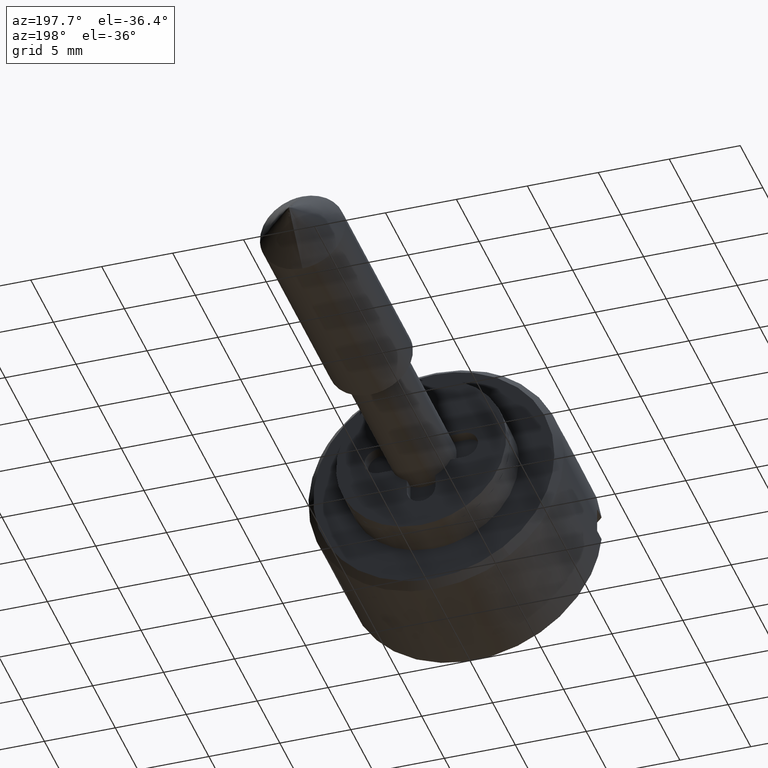
[diagram: clean part render]
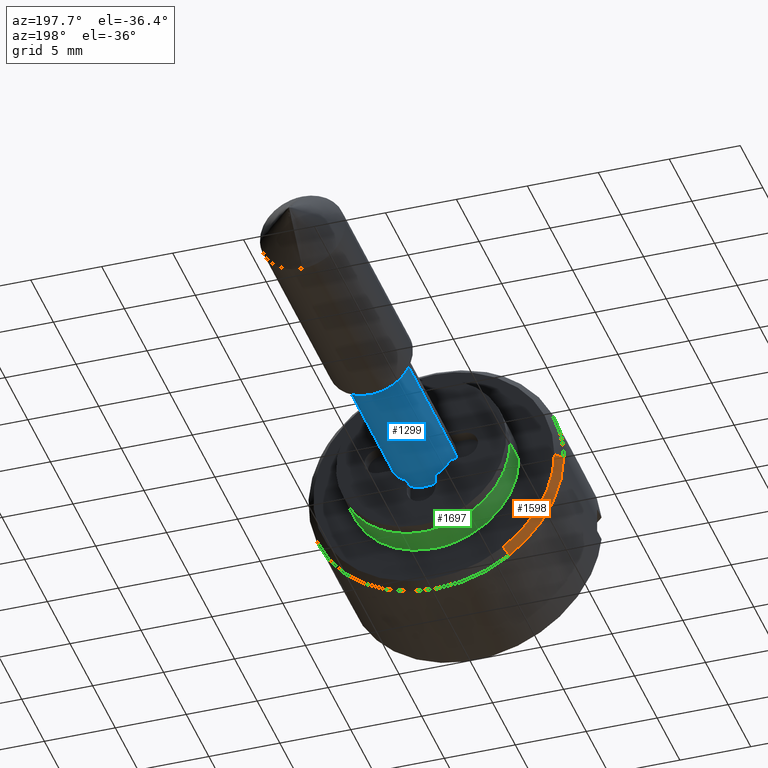
[diagram: same view with three faces highlighted in distinct colors, each labeled with its STEP entity id]
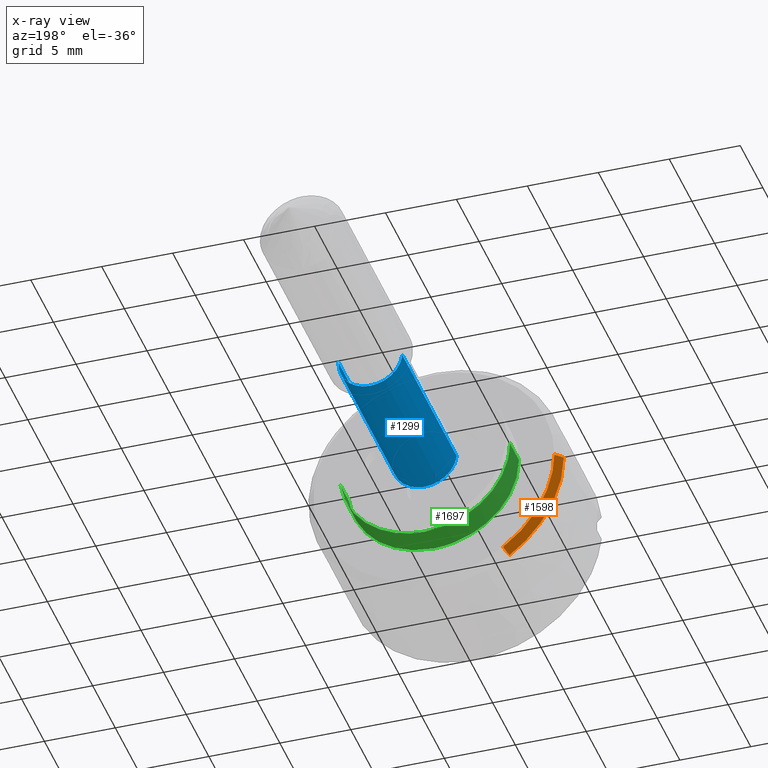
[diagram: x-ray of the same camera — body ghosted, the three highlighted faces saturated]
A machine part, auxiliary view with three faces highlighted in distinct colors.
The next image is the same camera in x-ray (body ghosted, the three faces saturated) — at least one of them is partly hidden behind the body in this view.
Their STEP definitions:

[orange] entity #1598 — the highlighted face is a freeform B-spline surface patch.
#1409=CARTESIAN_POINT('',(-2.500000000000823,5.165861152403982,-7.369795014387924));
#1410=VERTEX_POINT('',#1409);
#1426=CARTESIAN_POINT('',(-2.000000000000451,4.878868866152107,-6.960361958037634));
#1427=VERTEX_POINT('',#1426);
#1428=CARTESIAN_POINT('',(-2.000000000000451,4.878868866152107,-6.960361958037634));
#1429=CARTESIAN_POINT('',(-2.500000000000823,5.165861152403982,-7.369795014387924));
#1430=QUASI_UNIFORM_CURVE('',1,(#1428,#1429),.UNSPECIFIED.,.F.,.U.);
#1431=EDGE_CURVE('',#1427,#1410,#1430,.T.);
#1465=CARTESIAN_POINT('',(-2.000000000001879,8.499676346047114,-0.074175551749272));
#1466=VERTEX_POINT('',#1465);
#1482=CARTESIAN_POINT('',(-2.500000000000179,8.999657307577653,-0.078538819486243));
#1483=VERTEX_POINT('',#1482);
#1484=CARTESIAN_POINT('',(-2.000000000001879,8.499676346047114,-0.074175551749272));
#1485=CARTESIAN_POINT('',(-2.500000000000179,8.999657307577653,-0.078538819486243));
#1486=QUASI_UNIFORM_CURVE('',1,(#1484,#1485),.UNSPECIFIED.,.F.,.U.);
#1487=EDGE_CURVE('',#1466,#1483,#1486,.T.);
#1554=CARTESIAN_POINT('',(-1.987500000000101,8.487176822007138,-0.074066470042448));
#1555=CARTESIAN_POINT('',(-1.987500000000102,8.449053430331890,-4.442574460460221));
#1556=CARTESIAN_POINT('',(-1.987500000000102,4.871694058989055,-6.950126131633188));
#1557=CARTESIAN_POINT('',(-2.512812500000059,9.012469319716800,-0.078650628221438));
#1558=CARTESIAN_POINT('',(-2.512812500000060,8.971986376443390,-4.717536451183118));
#1559=CARTESIAN_POINT('',(-2.512812500000060,5.173215329723990,-7.380286736466609));
#1567=(BOUNDED_SURFACE()B_SPLINE_SURFACE(2,1,((#1554,#1557),(#1555,#1558),(#1556,#1559)),.UNSPECIFIED.,.F.,.F.,.U.)B_SPLINE_SURFACE_WITH_KNOTS((3,3),(2,2),(0.0,8.898679135690960),(0.0,1.0),.UNSPECIFIED.)GEOMETRIC_REPRESENTATION_ITEM()RATIONAL_B_SPLINE_SURFACE(((1.0,1.0),(0.824264068711928,0.824264068711928),(0.859411254969543,0.859411254969543)))REPRESENTATION_ITEM('')SURFACE());
#1568=CARTESIAN_POINT('',(-2.500000000000179,8.999657307577653,-0.078538819486243));
#1569=CARTESIAN_POINT('',(-2.500000000000060,8.959231914342398,-4.710830061143616));
#1570=CARTESIAN_POINT('',(-2.500000000000823,5.165861152403982,-7.369795014387924));
#1578=(BOUNDED_CURVE()B_SPLINE_CURVE(2,(#1568,#1569,#1570),.UNSPECIFIED.,.F.,.U.)B_SPLINE_CURVE_WITH_KNOTS((3,3),(0.751539894335021,0.901326273796527),.UNSPECIFIED.)CURVE()GEOMETRIC_REPRESENTATION_ITEM()RATIONAL_B_SPLINE_CURVE((0.996414028100327,0.823090203821323,0.860049271925575))REPRESENTATION_ITEM(''));
#1579=EDGE_CURVE('',#1483,#1410,#1578,.T.);
#1580=ORIENTED_EDGE('',*,*,#1579,.F.);
#1581=ORIENTED_EDGE('',*,*,#1487,.F.);
#1582=CARTESIAN_POINT('',(-2.000000000000450,4.878868866152107,-6.960361958037634));
#1583=CARTESIAN_POINT('',(-2.000000000000101,8.461496807977261,-4.449117279988691));
#1584=CARTESIAN_POINT('',(-2.000000000001879,8.499676346047114,-0.074175551749272));
#1592=(BOUNDED_CURVE()B_SPLINE_CURVE(2,(#1582,#1583,#1584),.UNSPECIFIED.,.F.,.U.)B_SPLINE_CURVE_WITH_KNOTS((3,3),(0.098673726203167,0.248460105664471),.UNSPECIFIED.)CURVE()GEOMETRIC_REPRESENTATION_ITEM()RATIONAL_B_SPLINE_CURVE((0.860049271925726,0.823090203821094,0.996414028099151))REPRESENTATION_ITEM(''));
#1593=EDGE_CURVE('',#1427,#1466,#1592,.T.);
#1594=ORIENTED_EDGE('',*,*,#1593,.F.);
#1595=ORIENTED_EDGE('',*,*,#1431,.T.);
#1596=EDGE_LOOP('',(#1580,#1581,#1594,#1595));
#1597=FACE_OUTER_BOUND('',#1596,.T.);
#1598=ADVANCED_FACE('',(#1597),#1567,.T.);

[blue] entity #1299 — the highlighted face is a freeform B-spline surface patch.
#1201=CARTESIAN_POINT('',(12.300000000000001,2.243064000899537,-0.176532965387653));
#1202=CARTESIAN_POINT('',(12.300000000000002,2.066531035511885,-2.419596966287189));
#1203=CARTESIAN_POINT('',(12.300000000000001,-0.176532965387653,-2.243064000899537));
#1204=CARTESIAN_POINT('',(12.300000000000002,-2.419596966287189,-2.066531035511885));
#1205=CARTESIAN_POINT('',(12.300000000000001,-2.243064000899537,0.176532965387653));
#1206=CARTESIAN_POINT('',(-0.307500000000001,2.243064000899537,-0.176532965387653));
#1207=CARTESIAN_POINT('',(-0.307500000000001,2.066531035511885,-2.419596966287189));
#1208=CARTESIAN_POINT('',(-0.307500000000001,-0.176532965387653,-2.243064000899537));
#1209=CARTESIAN_POINT('',(-0.307500000000001,-2.419596966287189,-2.066531035511885));
#1210=CARTESIAN_POINT('',(-0.307500000000001,-2.243064000899537,0.176532965387653));
#1218=(BOUNDED_SURFACE()B_SPLINE_SURFACE(2,1,((#1201,#1206),(#1202,#1207),(#1203,#1208),(#1204,#1209),(#1205,#1210)),.UNSPECIFIED.,.F.,.F.,.U.)B_SPLINE_SURFACE_WITH_KNOTS((3,2,3),(2,2),(0.0,3.727922061357853,7.455844122715707),(0.0,12.607500000000011),.UNSPECIFIED.)GEOMETRIC_REPRESENTATION_ITEM()RATIONAL_B_SPLINE_SURFACE(((1.0,1.0),(0.707106781186548,0.707106781186548),(1.0,1.0),(0.707106781186548,0.707106781186548),(1.0,1.0)))REPRESENTATION_ITEM('')SURFACE());
#1219=CARTESIAN_POINT('',(12.0,0.0,-2.250000000000000));
#1220=VERTEX_POINT('',#1219);
#1221=CARTESIAN_POINT('',(12.0,2.243064000898312,-0.176532965403218));
#1222=VERTEX_POINT('',#1221);
#1223=CARTESIAN_POINT('',(12.0,0.0,-2.250000000000000));
#1224=CARTESIAN_POINT('',(12.0,2.079878606202007,-2.250000000000000));
#1225=CARTESIAN_POINT('',(12.000000000000005,2.243064000898313,-0.176532965403219));
#1233=(BOUNDED_CURVE()B_SPLINE_CURVE(2,(#1223,#1224,#1225),.UNSPECIFIED.,.F.,.U.)B_SPLINE_CURVE_WITH_KNOTS((3,3),(0.0,0.236331300630387),.UNSPECIFIED.)CURVE()GEOMETRIC_REPRESENTATION_ITEM()RATIONAL_B_SPLINE_CURVE((1.0,0.723120658607984,0.969723356166850))REPRESENTATION_ITEM(''));
#1234=EDGE_CURVE('',#1220,#1222,#1233,.T.);
#1235=ORIENTED_EDGE('',*,*,#1234,.F.);
#1236=CARTESIAN_POINT('',(12.0,-2.243064000898312,0.176532965403218));
#1237=VERTEX_POINT('',#1236);
#1238=CARTESIAN_POINT('',(12.000000000000002,-2.243064000898312,0.176532965403218));
#1239=CARTESIAN_POINT('',(12.000000000000002,-2.250000000000000,0.088402740782896));
#1240=CARTESIAN_POINT('',(12.0,-2.250000000000000,0.0));
#1241=CARTESIAN_POINT('',(12.0,-2.250000000000000,-2.250000000000000));
#1242=CARTESIAN_POINT('',(12.0,0.0,-2.250000000000000));
#1250=(BOUNDED_CURVE()B_SPLINE_CURVE(2,(#1238,#1239,#1240,#1241,#1242),.UNSPECIFIED.,.F.,.U.)B_SPLINE_CURVE_WITH_KNOTS((3,2,3),(0.736331300630388,0.750000000000000,1.0),.UNSPECIFIED.)CURVE()GEOMETRIC_REPRESENTATION_ITEM()RATIONAL_B_SPLINE_CURVE((0.969723356166850,0.983986122578563,1.0,0.707106781186547,1.0))REPRESENTATION_ITEM(''));
#1251=EDGE_CURVE('',#1237,#1220,#1250,.T.);
#1252=ORIENTED_EDGE('',*,*,#1251,.F.);
#1253=CARTESIAN_POINT('',(-3.330669E-016,-2.243064000898312,0.176532965403218));
#1254=VERTEX_POINT('',#1253);
#1255=CARTESIAN_POINT('',(12.0,-2.243064000898312,0.176532965403218));
#1256=CARTESIAN_POINT('',(-3.330669E-016,-2.243064000898312,0.176532965403218));
#1257=QUASI_UNIFORM_CURVE('',1,(#1255,#1256),.UNSPECIFIED.,.F.,.U.);
#1258=EDGE_CURVE('',#1237,#1254,#1257,.T.);
#1259=ORIENTED_EDGE('',*,*,#1258,.T.);
#1260=CARTESIAN_POINT('',(0.0,0.0,-2.250000000000000));
#1261=VERTEX_POINT('',#1260);
#1262=CARTESIAN_POINT('',(-3.330669E-016,-2.243064000898312,0.176532965403218));
#1263=CARTESIAN_POINT('',(0.0,-2.250000000000000,0.088402740782896));
#1264=CARTESIAN_POINT('',(0.0,-2.250000000000000,0.0));
#1265=CARTESIAN_POINT('',(0.0,-2.250000000000000,-2.250000000000000));
#1266=CARTESIAN_POINT('',(0.0,0.0,-2.250000000000000));
#1274=(BOUNDED_CURVE()B_SPLINE_CURVE(2,(#1262,#1263,#1264,#1265,#1266),.UNSPECIFIED.,.F.,.U.)B_SPLINE_CURVE_WITH_KNOTS((3,2,3),(0.736331300630388,0.750000000000000,1.0),.UNSPECIFIED.)CURVE()GEOMETRIC_REPRESENTATION_ITEM()RATIONAL_B_SPLINE_CURVE((0.969723356166850,0.983986122578563,1.0,0.707106781186547,1.0))REPRESENTATION_ITEM(''));
#1275=EDGE_CURVE('',#1254,#1261,#1274,.T.);
#1276=ORIENTED_EDGE('',*,*,#1275,.T.);
#1277=CARTESIAN_POINT('',(-3.330669E-016,2.243064000898312,-0.176532965403218));
#1278=VERTEX_POINT('',#1277);
#1279=CARTESIAN_POINT('',(0.0,0.0,-2.250000000000000));
#1280=CARTESIAN_POINT('',(0.0,2.079878606202007,-2.250000000000000));
#1281=CARTESIAN_POINT('',(-3.330669E-016,2.243064000898313,-0.176532965403219));
#1289=(BOUNDED_CURVE()B_SPLINE_CURVE(2,(#1279,#1280,#1281),.UNSPECIFIED.,.F.,.U.)B_SPLINE_CURVE_WITH_KNOTS((3,3),(0.0,0.236331300630387),.UNSPECIFIED.)CURVE()GEOMETRIC_REPRESENTATION_ITEM()RATIONAL_B_SPLINE_CURVE((1.0,0.723120658607984,0.969723356166850))REPRESENTATION_ITEM(''));
#1290=EDGE_CURVE('',#1261,#1278,#1289,.T.);
#1291=ORIENTED_EDGE('',*,*,#1290,.T.);
#1292=CARTESIAN_POINT('',(12.0,2.243064000898312,-0.176532965403218));
#1293=CARTESIAN_POINT('',(-3.330669E-016,2.243064000898312,-0.176532965403218));
#1294=QUASI_UNIFORM_CURVE('',1,(#1292,#1293),.UNSPECIFIED.,.F.,.U.);
#1295=EDGE_CURVE('',#1222,#1278,#1294,.T.);
#1296=ORIENTED_EDGE('',*,*,#1295,.F.);
#1297=EDGE_LOOP('',(#1235,#1252,#1259,#1276,#1291,#1296));
#1298=FACE_OUTER_BOUND('',#1297,.T.);
#1299=ADVANCED_FACE('',(#1298),#1218,.T.);

[green] entity #1697 — the highlighted face is a freeform B-spline surface patch.
#1599=CARTESIAN_POINT('',(-2.050000000000118,-5.953597282953231,-0.744768012478976));
#1600=CARTESIAN_POINT('',(-2.050000000000118,-5.290387548799326,-6.046396983014668));
#1601=CARTESIAN_POINT('',(-2.050000000000118,0.052359212990243,-5.999771538385026));
#1602=CARTESIAN_POINT('',(-2.050000000000118,6.052130751375269,-5.947412325394783));
#1603=CARTESIAN_POINT('',(-2.050000000000118,5.999771538385026,0.052359212990243));
#1604=CARTESIAN_POINT('',(0.051250000000003,-5.953597282953231,-0.744768012478976));
#1605=CARTESIAN_POINT('',(0.051250000000003,-5.290387548799326,-6.046396983014668));
#1606=CARTESIAN_POINT('',(0.051250000000003,0.052359212990243,-5.999771538385026));
#1607=CARTESIAN_POINT('',(0.051250000000003,6.052130751375269,-5.947412325394783));
#1608=CARTESIAN_POINT('',(0.051250000000003,5.999771538385026,0.052359212990243));
#1616=(BOUNDED_SURFACE()B_SPLINE_SURFACE(2,1,((#1599,#1604),(#1600,#1605),(#1601,#1606),(#1602,#1607),(#1603,#1608)),.UNSPECIFIED.,.F.,.F.,.U.)B_SPLINE_SURFACE_WITH_KNOTS((3,2,3),(2,2),(0.0,9.145835457197935,19.086960954152211),(0.0,2.101250000000121),.UNSPECIFIED.)GEOMETRIC_REPRESENTATION_ITEM()RATIONAL_B_SPLINE_SURFACE(((0.956886118190660,0.956886118190660),(0.730538238691624,0.730538238691624),(1.0,1.0),(0.707106781186548,0.707106781186548),(1.0,1.0)))REPRESENTATION_ITEM('')SURFACE());
#1617=CARTESIAN_POINT('',(-2.000000000000115,0.0,-6.0));
#1618=VERTEX_POINT('',#1617);
#1619=CARTESIAN_POINT('',(-1.999999999999961,-5.953598067485189,-0.744761740959263));
#1620=VERTEX_POINT('',#1619);
#1621=CARTESIAN_POINT('',(-2.000000000000115,0.0,-6.0));
#1622=CARTESIAN_POINT('',(-2.000000000000115,-5.296197223394925,-6.000000000000001));
#1623=CARTESIAN_POINT('',(-1.999999999999961,-5.953598067485189,-0.744761740959263));
#1631=(BOUNDED_CURVE()B_SPLINE_CURVE(2,(#1621,#1622,#1623),.UNSPECIFIED.,.F.,.U.)B_SPLINE_CURVE_WITH_KNOTS((3,3),(0.0,0.228526248680937),.UNSPECIFIED.)CURVE()GEOMETRIC_REPRESENTATION_ITEM()RATIONAL_B_SPLINE_CURVE((1.0,0.732264845761908,0.954005775028161))REPRESENTATION_ITEM(''));
#1632=EDGE_CURVE('',#1618,#1620,#1631,.T.);
#1633=ORIENTED_EDGE('',*,*,#1632,.F.);
#1634=CARTESIAN_POINT('',(-2.000000000000168,5.999771563433871,0.052356342519694));
#1635=VERTEX_POINT('',#1634);
#1636=CARTESIAN_POINT('',(-2.000000000000168,5.999771563433871,0.052356342519694));
#1637=CARTESIAN_POINT('',(-2.000000000000115,6.0,0.026178669606964));
#1638=CARTESIAN_POINT('',(-2.000000000000115,6.0,0.0));
#1639=CARTESIAN_POINT('',(-2.000000000000114,6.0,-6.0));
#1640=CARTESIAN_POINT('',(-2.000000000000115,0.0,-6.0));
#1648=(BOUNDED_CURVE()B_SPLINE_CURVE(2,(#1636,#1637,#1638,#1639,#1640),.UNSPECIFIED.,.F.,.U.)B_SPLINE_CURVE_WITH_KNOTS((3,2,3),(0.748460189937006,0.750000000000000,1.0),.UNSPECIFIED.)CURVE()GEOMETRIC_REPRESENTATION_ITEM()RATIONAL_B_SPLINE_CURVE((0.996414223129476,0.998196000297154,1.0,0.707106781186548,1.0))REPRESENTATION_ITEM(''));
#1649=EDGE_CURVE('',#1635,#1618,#1648,.T.);
#1650=ORIENTED_EDGE('',*,*,#1649,.F.);
#1651=CARTESIAN_POINT('',(-5.204170E-017,5.999771572077092,0.052355351977211));
#1652=VERTEX_POINT('',#1651);
#1653=CARTESIAN_POINT('',(-2.000000000000168,5.999771563433871,0.052356342519694));
#1654=CARTESIAN_POINT('',(-5.204170E-017,5.999771572077092,0.052355351977211));
#1655=QUASI_UNIFORM_CURVE('',1,(#1653,#1654),.UNSPECIFIED.,.F.,.U.);
#1656=EDGE_CURVE('',#1635,#1652,#1655,.T.);
#1657=ORIENTED_EDGE('',*,*,#1656,.T.);
#1658=CARTESIAN_POINT('',(0.0,0.0,-6.0));
#1659=VERTEX_POINT('',#1658);
#1660=CARTESIAN_POINT('',(0.0,0.0,-6.0));
#1661=CARTESIAN_POINT('',(0.0,6.0,-6.0));
#1662=CARTESIAN_POINT('',(0.0,6.0,0.0));
#1663=CARTESIAN_POINT('',(0.0,5.999999999999999,0.026178174307440));
#1664=CARTESIAN_POINT('',(-5.204170E-017,5.999771572077092,0.052355351977211));
#1672=(BOUNDED_CURVE()B_SPLINE_CURVE(2,(#1660,#1661,#1662,#1663,#1664),.UNSPECIFIED.,.F.,.U.)B_SPLINE_CURVE_WITH_KNOTS((3,2,3),(0.500000000000000,0.750000000000000,0.751539780982396),.UNSPECIFIED.)CURVE()GEOMETRIC_REPRESENTATION_ITEM()RATIONAL_B_SPLINE_CURVE((1.0,0.707106781186548,1.0,0.998196034367193,0.996414290430181))REPRESENTATION_ITEM(''));
#1673=EDGE_CURVE('',#1659,#1652,#1672,.T.);
#1674=ORIENTED_EDGE('',*,*,#1673,.F.);
#1675=CARTESIAN_POINT('',(-5.438652E-017,-5.953597920942627,-0.744762912423280));
#1676=VERTEX_POINT('',#1675);
#1677=CARTESIAN_POINT('',(-5.438652E-017,-5.953597920942627,-0.744762912423280));
#1678=CARTESIAN_POINT('',(0.0,-5.296196173162930,-6.0));
#1679=CARTESIAN_POINT('',(0.0,0.0,-6.0));
#1687=(BOUNDED_CURVE()B_SPLINE_CURVE(2,(#1677,#1678,#1679),.UNSPECIFIED.,.F.,.U.)B_SPLINE_CURVE_WITH_KNOTS((3,3),(0.271473784502808,0.500000000000000),.UNSPECIFIED.)CURVE()GEOMETRIC_REPRESENTATION_ITEM()RATIONAL_B_SPLINE_CURVE((0.954005710631242,0.732264884639083,1.0))REPRESENTATION_ITEM(''));
#1688=EDGE_CURVE('',#1676,#1659,#1687,.T.);
#1689=ORIENTED_EDGE('',*,*,#1688,.F.);
#1690=CARTESIAN_POINT('',(-1.999999999999961,-5.953598067485189,-0.744761740959263));
#1691=CARTESIAN_POINT('',(-5.438652E-017,-5.953597920942627,-0.744762912423280));
#1692=QUASI_UNIFORM_CURVE('',1,(#1690,#1691),.UNSPECIFIED.,.F.,.U.);
#1693=EDGE_CURVE('',#1620,#1676,#1692,.T.);
#1694=ORIENTED_EDGE('',*,*,#1693,.F.);
#1695=EDGE_LOOP('',(#1633,#1650,#1657,#1674,#1689,#1694));
#1696=FACE_OUTER_BOUND('',#1695,.T.);
#1697=ADVANCED_FACE('',(#1696),#1616,.T.);